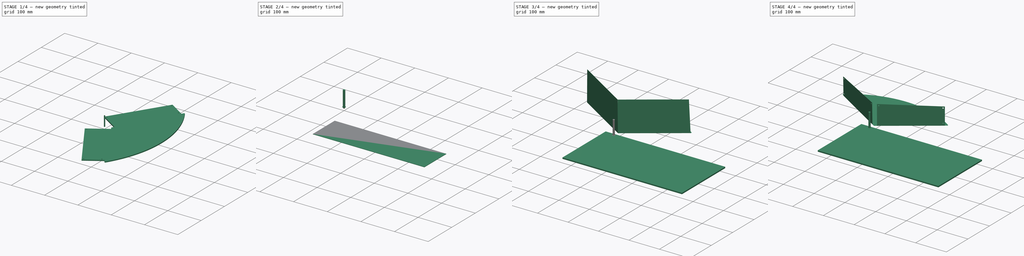
[diagram: build sequence overview — one tinted view per stage of 4, left to right]
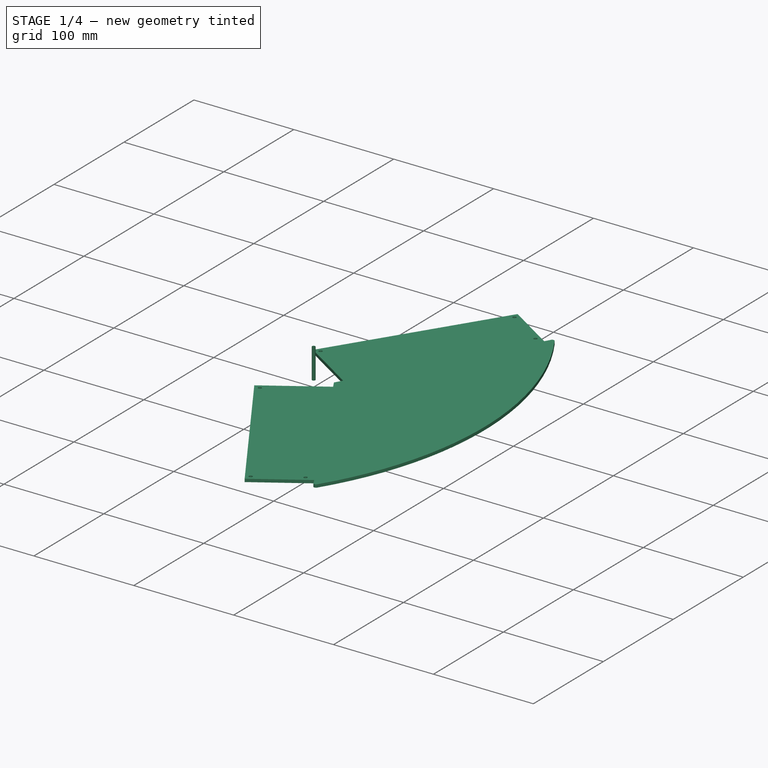
[diagram: stage 1 of 4 — iso view after this stage's code; geometry added in this stage tinted green]
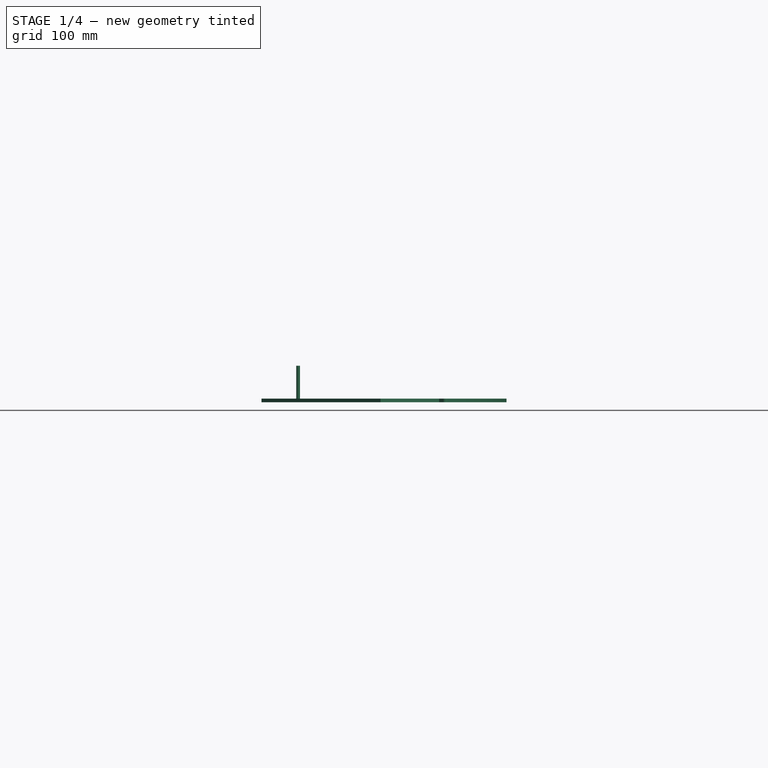
[diagram: stage 1 of 4 — front view after this stage's code; geometry added in this stage tinted green]
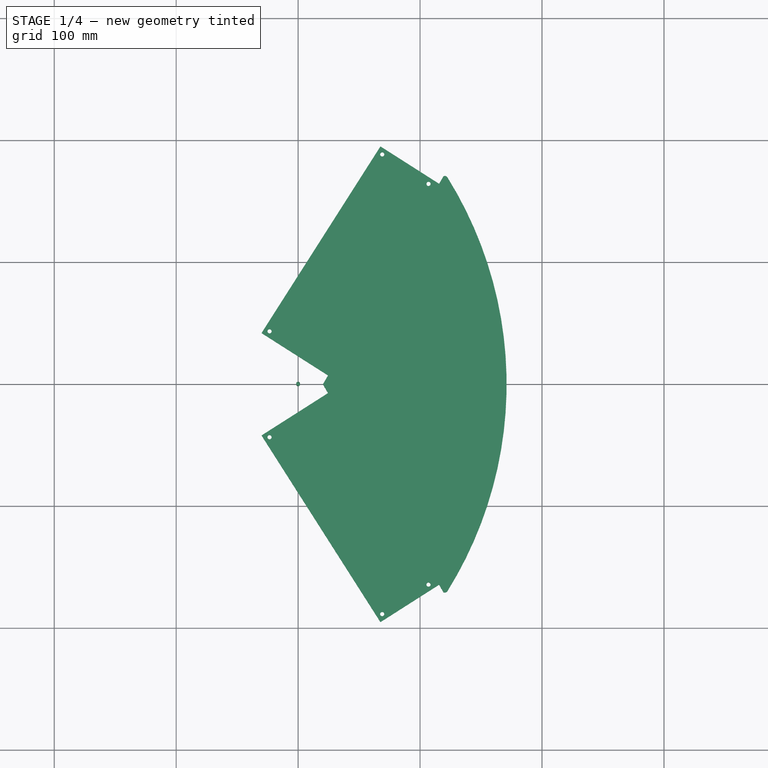
[diagram: stage 1 of 4 — top view after this stage's code; geometry added in this stage tinted green]
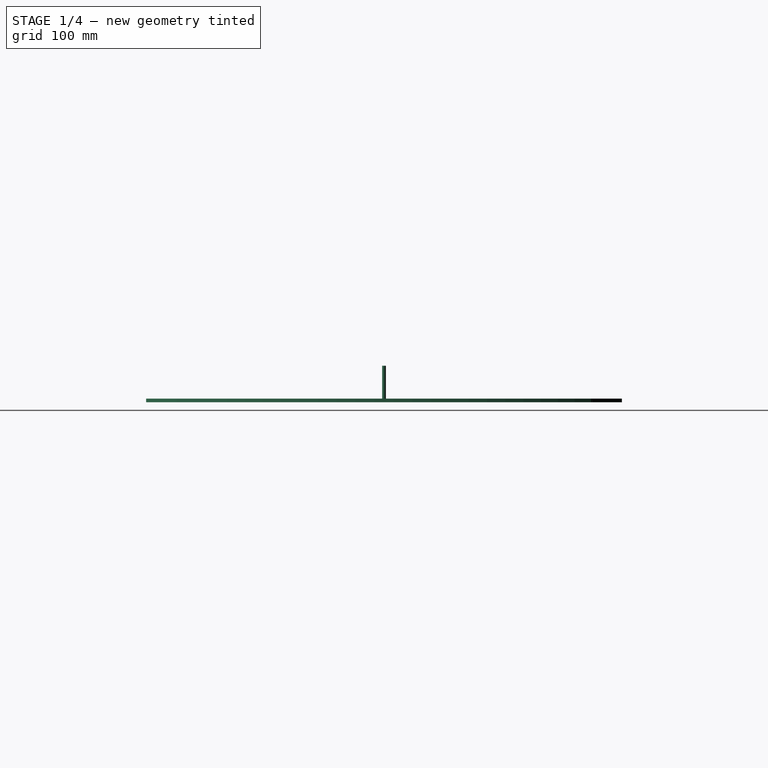
[diagram: stage 1 of 4 — right view after this stage's code; geometry added in this stage tinted green]
FCSTD DOCUMENT  (FreeCAD 0.21R31641 (Git))
Label: test_cover
License: All rights reserved
LicenseURL: http://en.wikipedia.org/wiki/All_rights_reserved
objects: Path::FeaturePython×7, App::DocumentObjectGroup×6, Sketcher::SketchObject×5, Part::FeaturePython×5, PartDesign::Pad×2, PartDesign::Pocket×2, PartDesign::Body×2, App::FeaturePython×2, PartDesign::FeaturePython×1, PartDesign::Line×1, PartDesign::SubShapeBinder×1, PartDesign::Mirrored×1, Part::Feature×1, PartDesign::FeatureBase×1, Part::Part2DObjectPython×1
note: 29 computed .brp shape members not serialized (recipe doc carries the construction recipe); baked Part::Feature solids carry a one-line shape summary decoded from their .brp
EXTERNAL_REF file=composit_stand_small_3_vertDroppers.FCStd obj=Body001

FEATURE [PartDesign::Body] Body  label="Body_material_0.30ansi"
  Group = -> [Sketch,Pad,Bend,Sketch001,Pocket,Pocket001,Mirrored,DatumLine,Binder]
  Origin = -> Origin
  Tip = -> Mirrored
FEATURE [Part::Feature] Unfold
  Placement = pos=(0,0,0) rot=(-0.043578,0.043578,-0.998099;1.5727rad)
  shape: bbox 201 x 390.2 x 0.4088 mm, 29 faces (baked)
FEATURE [Sketcher::SketchObject] Unfold_Sketch
  FullyConstrained = false
  sketch-geometry (72):
    g0: LineSegment StartX=24.1565 StartY=-7.46046 StartZ=0 EndX=-30.0265 EndY=-41.9772 EndZ=0
    g1: LineSegment StartX=-30.03 StartY=-41.9798 StartZ=0 EndX=-30.0265 EndY=-41.9772 EndZ=0
    g2: LineSegment StartX=-30.03 StartY=-41.9798 StartZ=0 EndX=67.4975 EndY=-195.08 EndZ=0
    g3: LineSegment StartX=-30.0265 StartY=-41.9772 StartZ=0 EndX=67.5011 EndY=-195.077 EndZ=0
    g4: LineSegment StartX=67.4975 StartY=-195.08 StartZ=0 EndX=67.5011 EndY=-195.077 EndZ=0
    g5: LineSegment StartX=67.4975 StartY=-195.08 StartZ=0 EndX=115.006 EndY=-164.815 EndZ=0
    g6: LineSegment StartX=67.5011 StartY=-195.077 StartZ=0 EndX=115.005 EndY=-164.815 EndZ=0
    g7: LineSegment StartX=115.005 StartY=-164.815 StartZ=0 EndX=115.006 EndY=-164.815 EndZ=0
    g8: BSplineCurve PolesCount=15 KnotsCount=13 Degree=3 IsPeriodic=0
    g9: BSplineCurve PolesCount=15 KnotsCount=13 Degree=3 IsPeriodic=0
    g10: LineSegment StartX=24.4228 StartY=-7.30156 StartZ=0 EndX=24.4163 EndY=-7.29023 EndZ=0
    g11: BSplineCurve PolesCount=15 KnotsCount=13 Degree=3 IsPeriodic=0
    g12: BSplineCurve PolesCount=15 KnotsCount=13 Degree=3 IsPeriodic=0
    g13: LineSegment StartX=115.272 StartY=-164.656 StartZ=0 EndX=115.622 EndY=-164.455 EndZ=0
    g14: LineSegment StartX=24.5125 StartY=7.25 StartZ=0 EndX=20.3107 EndY=1.42e-14 EndZ=0
    g15: LineSegment StartX=20.2844 StartY=3.8e-15 StartZ=0 EndX=20.3107 EndY=3.8e-15 EndZ=0
    g16: LineSegment StartX=24.4862 StartY=7.25 StartZ=0 EndX=20.2844 EndY=1.42e-14 EndZ=0
    g17: LineSegment StartX=24.5125 StartY=7.25 StartZ=0 EndX=24.4862 EndY=7.25 EndZ=0
    g18: LineSegment StartX=24.4862 StartY=7.25 StartZ=0 EndX=24.4163 EndY=7.29023 EndZ=0
    g19: LineSegment StartX=24.5125 StartY=7.25 StartZ=0 EndX=24.4228 EndY=7.30156 EndZ=0
    g20: LineSegment StartX=24.4228 StartY=7.30156 StartZ=0 EndX=24.4163 EndY=7.29023 EndZ=0
    g21: LineSegment StartX=-30.0265 StartY=41.9772 StartZ=0 EndX=24.1565 EndY=7.46046 EndZ=0
    g22: LineSegment StartX=-30.03 StartY=41.9798 StartZ=0 EndX=-30.0265 EndY=41.9772 EndZ=0
    g23: LineSegment StartX=67.4975 StartY=195.08 StartZ=0 EndX=-30.03 EndY=41.9798 EndZ=0
    g24: LineSegment StartX=67.5011 StartY=195.077 StartZ=0 EndX=-30.0265 EndY=41.9772 EndZ=0
    g25: LineSegment StartX=67.4975 StartY=195.08 StartZ=0 EndX=67.5011 EndY=195.077 EndZ=0
    g26: LineSegment StartX=115.006 StartY=164.815 StartZ=0 EndX=67.4975 EndY=195.08 EndZ=0
    g27: LineSegment StartX=115.005 StartY=164.815 StartZ=0 EndX=67.5011 EndY=195.077 EndZ=0
    g28: LineSegment StartX=115.005 StartY=164.815 StartZ=0 EndX=115.006 EndY=164.815 EndZ=0
    g29: BSplineCurve PolesCount=15 KnotsCount=13 Degree=3 IsPeriodic=0
    g30: BSplineCurve PolesCount=15 KnotsCount=13 Degree=3 IsPeriodic=0
    g31: BSplineCurve PolesCount=15 KnotsCount=13 Degree=3 IsPeriodic=0
    g32: BSplineCurve PolesCount=15 KnotsCount=13 Degree=3 IsPeriodic=0
    g33: LineSegment StartX=115.272 StartY=164.656 StartZ=0 EndX=115.622 EndY=164.455 EndZ=0
    g34: LineSegment StartX=119.151 StartY=170.591 StartZ=0 EndX=115.602 EndY=164.466 EndZ=0
    g35: BSplineCurve PolesCount=15 KnotsCount=15 Degree=1 IsPeriodic=0
    g36: LineSegment StartX=119.189 StartY=170.61 StartZ=0 EndX=115.622 EndY=164.455 EndZ=0
    g37: ArcOfCircle CenterX=120.304 CenterY=168.372 CenterZ=0 NormalX=0 NormalY=0 NormalZ=1 AngleXU=-1.5708 Radius=2.5 StartAngle=2.12788 EndAngle=3.604
    g38: ArcOfCircle CenterX=-150 CenterY=2.84e-14 CenterZ=0 NormalX=0 NormalY=0 NormalZ=1 AngleXU=-1.5708 Radius=320.955 StartAngle=1.01371 EndAngle=2.12788
    g39: ArcOfCircle CenterX=120.304 CenterY=-168.372 CenterZ=0 NormalX=0 NormalY=0 NormalZ=1 AngleXU=-1.5708 Radius=2.5 StartAngle=5.82078 EndAngle=7.29689
    g40: BSplineCurve PolesCount=15 KnotsCount=15 Degree=1 IsPeriodic=0
    g41: LineSegment StartX=119.151 StartY=-170.591 StartZ=0 EndX=115.602 EndY=-164.466 EndZ=0
    g42: LineSegment StartX=119.189 StartY=-170.61 StartZ=0 EndX=115.622 EndY=-164.455 EndZ=0
    g43: LineSegment StartX=24.4862 StartY=-7.25 StartZ=0 EndX=24.4163 EndY=-7.29023 EndZ=0
    g44: LineSegment StartX=24.5125 StartY=-7.25 StartZ=0 EndX=24.4862 EndY=-7.25 EndZ=0
    g45: LineSegment StartX=24.5125 StartY=-7.25 StartZ=0 EndX=24.4228 EndY=-7.30156 EndZ=0
    g46: LineSegment StartX=24.5125 StartY=-7.25 StartZ=0 EndX=20.3107 EndY=0 EndZ=0
    g47: LineSegment StartX=24.4862 StartY=-7.25 StartZ=0 EndX=20.2844 EndY=0 EndZ=0
    g48: ArcOfEllipse CenterX=106.913 CenterY=164.324 CenterZ=0 NormalX=0 NormalY=0 NormalZ=1 MajorRadius=1.70018 MinorRadius=1.7 AngleXU=2.50456 StartAngle=1.57208 EndAngle=4.7111
    g49: ArcOfEllipse CenterX=68.9559 CenterY=188.504 CenterZ=0 NormalX=0 NormalY=0 NormalZ=1 MajorRadius=1.70018 MinorRadius=1.7 AngleXU=2.50456 StartAngle=1.57208 EndAngle=4.7111
    g50: ArcOfEllipse CenterX=68.9559 CenterY=-188.504 CenterZ=0 NormalX=0 NormalY=0 NormalZ=1 MajorRadius=1.70018 MinorRadius=1.7 AngleXU=-2.50456 StartAngle=1.57208 EndAngle=4.7111
    g51: ArcOfEllipse CenterX=106.913 CenterY=-164.324 CenterZ=0 NormalX=0 NormalY=0 NormalZ=1 MajorRadius=1.70018 MinorRadius=1.7 AngleXU=-2.50456 StartAngle=1.57208 EndAngle=4.7111
    g52: ArcOfEllipse CenterX=-23.4543 CenterY=43.4374 CenterZ=0 NormalX=0 NormalY=0 NormalZ=1 MajorRadius=1.70018 MinorRadius=1.7 AngleXU=2.50456 StartAngle=1.57208 EndAngle=4.7111
    g53: ArcOfEllipse CenterX=-23.4543 CenterY=-43.4374 CenterZ=0 NormalX=0 NormalY=0 NormalZ=1 MajorRadius=1.70018 MinorRadius=1.7 AngleXU=-2.50456 StartAngle=1.57208 EndAngle=4.7111
    g54: ArcOfEllipse CenterX=106.917 CenterY=164.321 CenterZ=0 NormalX=0 NormalY=0 NormalZ=1 MajorRadius=1.70018 MinorRadius=1.7 AngleXU=2.50456 StartAngle=4.71239 EndAngle=4.78222
    g55: ArcOfEllipse CenterX=106.917 CenterY=164.321 CenterZ=0 NormalX=0 NormalY=0 NormalZ=1 MajorRadius=1.70018 MinorRadius=1.7 AngleXU=2.50456 StartAngle=1.5708 EndAngle=4.71239
    g56: ArcOfEllipse CenterX=106.917 CenterY=164.321 CenterZ=0 NormalX=0 NormalY=0 NormalZ=1 MajorRadius=1.70018 MinorRadius=1.7 AngleXU=2.50456 StartAngle=4.78222 EndAngle=7.85398
    g57: ArcOfEllipse CenterX=68.9594 CenterY=188.502 CenterZ=0 NormalX=0 NormalY=0 NormalZ=1 MajorRadius=1.70018 MinorRadius=1.7 AngleXU=2.50456 StartAngle=4.71239 EndAngle=4.78222
    g58: ArcOfEllipse CenterX=68.9594 CenterY=188.502 CenterZ=0 NormalX=0 NormalY=0 NormalZ=1 MajorRadius=1.70018 MinorRadius=1.7 AngleXU=2.50456 StartAngle=1.5708 EndAngle=4.71239
    g59: ArcOfEllipse CenterX=68.9594 CenterY=188.502 CenterZ=0 NormalX=0 NormalY=0 NormalZ=1 MajorRadius=1.70018 MinorRadius=1.7 AngleXU=2.50456 StartAngle=4.78222 EndAngle=7.85398
    g60: ArcOfEllipse CenterX=68.9594 CenterY=-188.502 CenterZ=0 NormalX=0 NormalY=0 NormalZ=1 MajorRadius=1.70018 MinorRadius=1.7 AngleXU=-2.50456 StartAngle=1.50097 EndAngle=1.5708
    g61: ArcOfEllipse CenterX=68.9594 CenterY=-188.502 CenterZ=0 NormalX=0 NormalY=0 NormalZ=1 MajorRadius=1.70018 MinorRadius=1.7 AngleXU=-2.50456 StartAngle=1.5708 EndAngle=4.71239
    g62: ArcOfEllipse CenterX=68.9594 CenterY=-188.502 CenterZ=0 NormalX=0 NormalY=0 NormalZ=1 MajorRadius=1.70018 MinorRadius=1.7 AngleXU=-2.50456 StartAngle=4.71239 EndAngle=7.78415
    g63: ArcOfEllipse CenterX=106.917 CenterY=-164.321 CenterZ=0 NormalX=0 NormalY=0 NormalZ=1 MajorRadius=1.70018 MinorRadius=1.7 AngleXU=-2.50456 StartAngle=1.50097 EndAngle=1.5708
    g64: ArcOfEllipse CenterX=106.917 CenterY=-164.321 CenterZ=0 NormalX=0 NormalY=0 NormalZ=1 MajorRadius=1.70018 MinorRadius=1.7 AngleXU=-2.50456 StartAngle=1.5708 EndAngle=4.71239
    g65: ArcOfEllipse CenterX=106.917 CenterY=-164.321 CenterZ=0 NormalX=0 NormalY=0 NormalZ=1 MajorRadius=1.70018 MinorRadius=1.7 AngleXU=-2.50456 StartAngle=4.71239 EndAngle=7.78415
    g66: ArcOfEllipse CenterX=-23.4508 CenterY=43.4348 CenterZ=0 NormalX=0 NormalY=0 NormalZ=1 MajorRadius=1.70018 MinorRadius=1.7 AngleXU=2.50456 StartAngle=4.71239 EndAngle=4.78222
    g67: ArcOfEllipse CenterX=-23.4508 CenterY=43.4348 CenterZ=0 NormalX=0 NormalY=0 NormalZ=1 MajorRadius=1.70018 MinorRadius=1.7 AngleXU=2.50456 StartAngle=1.5708 EndAngle=4.71239
    g68: ArcOfEllipse CenterX=-23.4508 CenterY=43.4348 CenterZ=0 NormalX=0 NormalY=0 NormalZ=1 MajorRadius=1.70018 MinorRadius=1.7 AngleXU=2.50456 StartAngle=4.78222 EndAngle=7.85398
    g69: ArcOfEllipse CenterX=-23.4508 CenterY=-43.4348 CenterZ=0 NormalX=0 NormalY=0 NormalZ=1 MajorRadius=1.70018 MinorRadius=1.7 AngleXU=-2.50456 StartAngle=1.50097 EndAngle=1.5708
    g70: ArcOfEllipse CenterX=-23.4508 CenterY=-43.4348 CenterZ=0 NormalX=0 NormalY=0 NormalZ=1 MajorRadius=1.70018 MinorRadius=1.7 AngleXU=-2.50456 StartAngle=1.5708 EndAngle=4.71239
    g71: ArcOfEllipse CenterX=-23.4508 CenterY=-43.4348 CenterZ=0 NormalX=0 NormalY=0 NormalZ=1 MajorRadius=1.70018 MinorRadius=1.7 AngleXU=-2.50456 StartAngle=4.71239 EndAngle=7.78415
FEATURE [Sketcher::SketchObject] Unfold_Sketch_Outline
  FullyConstrained = false
  sketch-geometry (72):
    g0: BSplineCurve PolesCount=15 KnotsCount=15 Degree=1 IsPeriodic=0
    g1: LineSegment StartX=119.151 StartY=-170.591 StartZ=0 EndX=115.602 EndY=-164.466 EndZ=0
    g2: BSplineCurve PolesCount=15 KnotsCount=13 Degree=3 IsPeriodic=0
    g3: BSplineCurve PolesCount=15 KnotsCount=13 Degree=3 IsPeriodic=0
    g4: LineSegment StartX=115.272 StartY=-164.656 StartZ=0 EndX=115.622 EndY=-164.455 EndZ=0
    g5: LineSegment StartX=119.189 StartY=-170.61 StartZ=0 EndX=115.622 EndY=-164.455 EndZ=0
    g6: ArcOfCircle CenterX=120.304 CenterY=-168.372 CenterZ=0 NormalX=0 NormalY=0 NormalZ=1 AngleXU=-1.5708 Radius=2.5 StartAngle=5.82078 EndAngle=7.29689
    g7: ArcOfCircle CenterX=-150 CenterY=2.84e-14 CenterZ=0 NormalX=0 NormalY=0 NormalZ=1 AngleXU=-1.5708 Radius=320.955 StartAngle=1.01371 EndAngle=2.12788
    g8: ArcOfCircle CenterX=120.304 CenterY=168.372 CenterZ=0 NormalX=0 NormalY=0 NormalZ=1 AngleXU=-1.5708 Radius=2.5 StartAngle=2.12788 EndAngle=3.604
    g9: LineSegment StartX=119.189 StartY=170.61 StartZ=0 EndX=115.622 EndY=164.455 EndZ=0
    g10: LineSegment StartX=115.272 StartY=164.656 StartZ=0 EndX=115.622 EndY=164.455 EndZ=0
    g11: BSplineCurve PolesCount=15 KnotsCount=13 Degree=3 IsPeriodic=0
    g12: LineSegment StartX=115.005 StartY=164.815 StartZ=0 EndX=115.006 EndY=164.815 EndZ=0
    g13: BSplineCurve PolesCount=15 KnotsCount=13 Degree=3 IsPeriodic=0
    g14: LineSegment StartX=115.005 StartY=164.815 StartZ=0 EndX=67.5011 EndY=195.077 EndZ=0
    g15: LineSegment StartX=67.5011 StartY=195.077 StartZ=0 EndX=-30.0265 EndY=41.9772 EndZ=0
    g16: LineSegment StartX=-30.0265 StartY=41.9772 StartZ=0 EndX=24.1565 EndY=7.46046 EndZ=0
    g17: BSplineCurve PolesCount=15 KnotsCount=13 Degree=3 IsPeriodic=0
    g18: LineSegment StartX=24.5125 StartY=7.25 StartZ=0 EndX=24.4228 EndY=7.30156 EndZ=0
    g19: LineSegment StartX=24.5125 StartY=7.25 StartZ=0 EndX=24.4862 EndY=7.25 EndZ=0
    g20: LineSegment StartX=24.4862 StartY=7.25 StartZ=0 EndX=20.2844 EndY=1.42e-14 EndZ=0
    g21: LineSegment StartX=24.4862 StartY=-7.25 StartZ=0 EndX=20.2844 EndY=0 EndZ=0
    g22: BSplineCurve PolesCount=15 KnotsCount=13 Degree=3 IsPeriodic=0
    g23: LineSegment StartX=24.4862 StartY=-7.25 StartZ=0 EndX=24.4163 EndY=-7.29023 EndZ=0
    g24: LineSegment StartX=24.5125 StartY=-7.25 StartZ=0 EndX=24.4862 EndY=-7.25 EndZ=0
    g25: LineSegment StartX=24.5125 StartY=-7.25 StartZ=0 EndX=24.4228 EndY=-7.30156 EndZ=0
    g26: LineSegment StartX=24.4228 StartY=-7.30156 StartZ=0 EndX=24.4163 EndY=-7.29023 EndZ=0
    g27: BSplineCurve PolesCount=15 KnotsCount=13 Degree=3 IsPeriodic=0
    g28: LineSegment StartX=24.1565 StartY=-7.46046 StartZ=0 EndX=-30.0265 EndY=-41.9772 EndZ=0
    g29: LineSegment StartX=-30.03 StartY=-41.9798 StartZ=0 EndX=-30.0265 EndY=-41.9772 EndZ=0
    g30: LineSegment StartX=-30.03 StartY=-41.9798 StartZ=0 EndX=67.4975 EndY=-195.08 EndZ=0
    g31: LineSegment StartX=67.4975 StartY=-195.08 StartZ=0 EndX=67.5011 EndY=-195.077 EndZ=0
    g32: LineSegment StartX=67.5011 StartY=-195.077 StartZ=0 EndX=115.005 EndY=-164.815 EndZ=0
    g33: LineSegment StartX=115.005 StartY=-164.815 StartZ=0 EndX=115.006 EndY=-164.815 EndZ=0
    g34: LineSegment StartX=67.4975 StartY=-195.08 StartZ=0 EndX=115.006 EndY=-164.815 EndZ=0
    g35: LineSegment StartX=-30.0265 StartY=-41.9772 StartZ=0 EndX=67.5011 EndY=-195.077 EndZ=0
    g36: LineSegment StartX=24.5125 StartY=-7.25 StartZ=0 EndX=20.3107 EndY=0 EndZ=0
    g37: LineSegment StartX=24.5125 StartY=7.25 StartZ=0 EndX=20.3107 EndY=1.42e-14 EndZ=0
    g38: LineSegment StartX=24.4862 StartY=7.25 StartZ=0 EndX=24.4163 EndY=7.29023 EndZ=0
    g39: LineSegment StartX=24.4228 StartY=7.30156 StartZ=0 EndX=24.4163 EndY=7.29023 EndZ=0
    g40: BSplineCurve PolesCount=15 KnotsCount=13 Degree=3 IsPeriodic=0
    g41: LineSegment StartX=20.2844 StartY=3.8e-15 StartZ=0 EndX=20.3107 EndY=3.8e-15 EndZ=0
    g42: LineSegment StartX=-30.03 StartY=41.9798 StartZ=0 EndX=-30.0265 EndY=41.9772 EndZ=0
    g43: LineSegment StartX=67.4975 StartY=195.08 StartZ=0 EndX=-30.03 EndY=41.9798 EndZ=0
    g44: LineSegment StartX=67.4975 StartY=195.08 StartZ=0 EndX=67.5011 EndY=195.077 EndZ=0
    g45: LineSegment StartX=115.006 StartY=164.815 StartZ=0 EndX=67.4975 EndY=195.08 EndZ=0
    g46: LineSegment StartX=119.151 StartY=170.591 StartZ=0 EndX=115.602 EndY=164.466 EndZ=0
    g47: BSplineCurve PolesCount=15 KnotsCount=15 Degree=1 IsPeriodic=0
    g48: ArcOfEllipse CenterX=106.913 CenterY=164.324 CenterZ=0 NormalX=0 NormalY=0 NormalZ=1 MajorRadius=1.70018 MinorRadius=1.7 AngleXU=2.50456 StartAngle=1.57208 EndAngle=4.7111
    g49: ArcOfEllipse CenterX=68.9559 CenterY=188.504 CenterZ=0 NormalX=0 NormalY=0 NormalZ=1 MajorRadius=1.70018 MinorRadius=1.7 AngleXU=2.50456 StartAngle=1.57208 EndAngle=4.7111
    g50: ArcOfEllipse CenterX=68.9559 CenterY=-188.504 CenterZ=0 NormalX=0 NormalY=0 NormalZ=1 MajorRadius=1.70018 MinorRadius=1.7 AngleXU=-2.50456 StartAngle=1.57208 EndAngle=4.7111
    g51: ArcOfEllipse CenterX=106.913 CenterY=-164.324 CenterZ=0 NormalX=0 NormalY=0 NormalZ=1 MajorRadius=1.70018 MinorRadius=1.7 AngleXU=-2.50456 StartAngle=1.57208 EndAngle=4.7111
    g52: ArcOfEllipse CenterX=-23.4543 CenterY=43.4374 CenterZ=0 NormalX=0 NormalY=0 NormalZ=1 MajorRadius=1.70018 MinorRadius=1.7 AngleXU=2.50456 StartAngle=1.57208 EndAngle=4.7111
    g53: ArcOfEllipse CenterX=-23.4543 CenterY=-43.4374 CenterZ=0 NormalX=0 NormalY=0 NormalZ=1 MajorRadius=1.70018 MinorRadius=1.7 AngleXU=-2.50456 StartAngle=1.57208 EndAngle=4.7111
    g54: ArcOfEllipse CenterX=106.917 CenterY=164.321 CenterZ=0 NormalX=0 NormalY=0 NormalZ=1 MajorRadius=1.70018 MinorRadius=1.7 AngleXU=2.50456 StartAngle=4.71239 EndAngle=4.78222
    g55: ArcOfEllipse CenterX=106.917 CenterY=164.321 CenterZ=0 NormalX=0 NormalY=0 NormalZ=1 MajorRadius=1.70018 MinorRadius=1.7 AngleXU=2.50456 StartAngle=4.78222 EndAngle=7.85398
    g56: ArcOfEllipse CenterX=106.917 CenterY=164.321 CenterZ=0 NormalX=0 NormalY=0 NormalZ=1 MajorRadius=1.70018 MinorRadius=1.7 AngleXU=2.50456 StartAngle=1.5708 EndAngle=4.71239
    g57: ArcOfEllipse CenterX=68.9594 CenterY=188.502 CenterZ=0 NormalX=0 NormalY=0 NormalZ=1 MajorRadius=1.70018 MinorRadius=1.7 AngleXU=2.50456 StartAngle=4.71239 EndAngle=4.78222
    g58: ArcOfEllipse CenterX=68.9594 CenterY=188.502 CenterZ=0 NormalX=0 NormalY=0 NormalZ=1 MajorRadius=1.70018 MinorRadius=1.7 AngleXU=2.50456 StartAngle=4.78222 EndAngle=7.85398
    g59: ArcOfEllipse CenterX=68.9594 CenterY=188.502 CenterZ=0 NormalX=0 NormalY=0 NormalZ=1 MajorRadius=1.70018 MinorRadius=1.7 AngleXU=2.50456 StartAngle=1.5708 EndAngle=4.71239
    g60: ArcOfEllipse CenterX=68.9594 CenterY=-188.502 CenterZ=0 NormalX=0 NormalY=0 NormalZ=1 MajorRadius=1.70018 MinorRadius=1.7 AngleXU=-2.50456 StartAngle=1.50097 EndAngle=1.5708
    g61: ArcOfEllipse CenterX=68.9594 CenterY=-188.502 CenterZ=0 NormalX=0 NormalY=0 NormalZ=1 MajorRadius=1.70018 MinorRadius=1.7 AngleXU=-2.50456 StartAngle=1.5708 EndAngle=4.71239
    g62: ArcOfEllipse CenterX=68.9594 CenterY=-188.502 CenterZ=0 NormalX=0 NormalY=0 NormalZ=1 MajorRadius=1.70018 MinorRadius=1.7 AngleXU=-2.50456 StartAngle=4.71239 EndAngle=7.78415
    g63: ArcOfEllipse CenterX=106.917 CenterY=-164.321 CenterZ=0 NormalX=0 NormalY=0 NormalZ=1 MajorRadius=1.70018 MinorRadius=1.7 AngleXU=-2.50456 StartAngle=1.50097 EndAngle=1.5708
    g64: ArcOfEllipse CenterX=106.917 CenterY=-164.321 CenterZ=0 NormalX=0 NormalY=0 NormalZ=1 MajorRadius=1.70018 MinorRadius=1.7 AngleXU=-2.50456 StartAngle=1.5708 EndAngle=4.71239
    g65: ArcOfEllipse CenterX=106.917 CenterY=-164.321 CenterZ=0 NormalX=0 NormalY=0 NormalZ=1 MajorRadius=1.70018 MinorRadius=1.7 AngleXU=-2.50456 StartAngle=4.71239 EndAngle=7.78415
    g66: ArcOfEllipse CenterX=-23.4508 CenterY=43.4348 CenterZ=0 NormalX=0 NormalY=0 NormalZ=1 MajorRadius=1.70018 MinorRadius=1.7 AngleXU=2.50456 StartAngle=4.71239 EndAngle=4.78222
    g67: ArcOfEllipse CenterX=-23.4508 CenterY=43.4348 CenterZ=0 NormalX=0 NormalY=0 NormalZ=1 MajorRadius=1.70018 MinorRadius=1.7 AngleXU=2.50456 StartAngle=4.78222 EndAngle=7.85398
    g68: ArcOfEllipse CenterX=-23.4508 CenterY=43.4348 CenterZ=0 NormalX=0 NormalY=0 NormalZ=1 MajorRadius=1.70018 MinorRadius=1.7 AngleXU=2.50456 StartAngle=1.5708 EndAngle=4.71239
    g69: ArcOfEllipse CenterX=-23.4508 CenterY=-43.4348 CenterZ=0 NormalX=0 NormalY=0 NormalZ=1 MajorRadius=1.70018 MinorRadius=1.7 AngleXU=-2.50456 StartAngle=1.50097 EndAngle=1.5708
    g70: ArcOfEllipse CenterX=-23.4508 CenterY=-43.4348 CenterZ=0 NormalX=0 NormalY=0 NormalZ=1 MajorRadius=1.70018 MinorRadius=1.7 AngleXU=-2.50456 StartAngle=1.5708 EndAngle=4.71239
    g71: ArcOfEllipse CenterX=-23.4508 CenterY=-43.4348 CenterZ=0 NormalX=0 NormalY=0 NormalZ=1 MajorRadius=1.70018 MinorRadius=1.7 AngleXU=-2.50456 StartAngle=4.71239 EndAngle=7.78415
FEATURE [Sketcher::SketchObject] Unfold_Sketch_bends
  FullyConstrained = false
  sketch-geometry (2):
    g0: LineSegment StartX=24.2892 StartY=7.38016 StartZ=0 EndX=115.138 EndY=164.735 EndZ=0
    g1: LineSegment StartX=24.2892 StartY=-7.38016 StartZ=0 EndX=115.138 EndY=-164.735 EndZ=0
FEATURE [PartDesign::FeatureBase] BaseFeature
  BaseFeature = -> Unfold
  Placement = pos=(0,0,0) rot=(-0.043578,0.043578,-0.998099;1.5727rad)
  expr: Placement = <<Unfold>>.Placement
FEATURE [PartDesign::Pad] Pad001
  BaseFeature = -> BaseFeature
  Direction = (-1e-16,0,1)
  Length = 2.7
  Length2 = 10
  Placement = pos=(0,0,0) rot=(-0.043578,0.043578,-0.998099;1.5727rad)
  Profile = -> BaseFeature [Face29]
  Type = 0
FEATURE [App::DocumentObjectGroup] Model
  Group = -> [Clone]
FEATURE [Part::FeaturePython] ToolBit  label="3.175mm Endmill"  # Path/CAM toolbit (typed FeaturePython)
  BitPropertyNames = Chipload | CuttingEdgeHeight | Diameter | Flutes | Length | Material | ShankDiameter | SpindleDirection
  BitShape = <path>
  Chipload = 0
  CuttingEdgeHeight = 30
  Diameter = 3.17
  Flutes = 0
  Length = 10
  Material = 0
  ShankDiameter = 3
  ShapeName = endmill
  SpindleDirection = 0
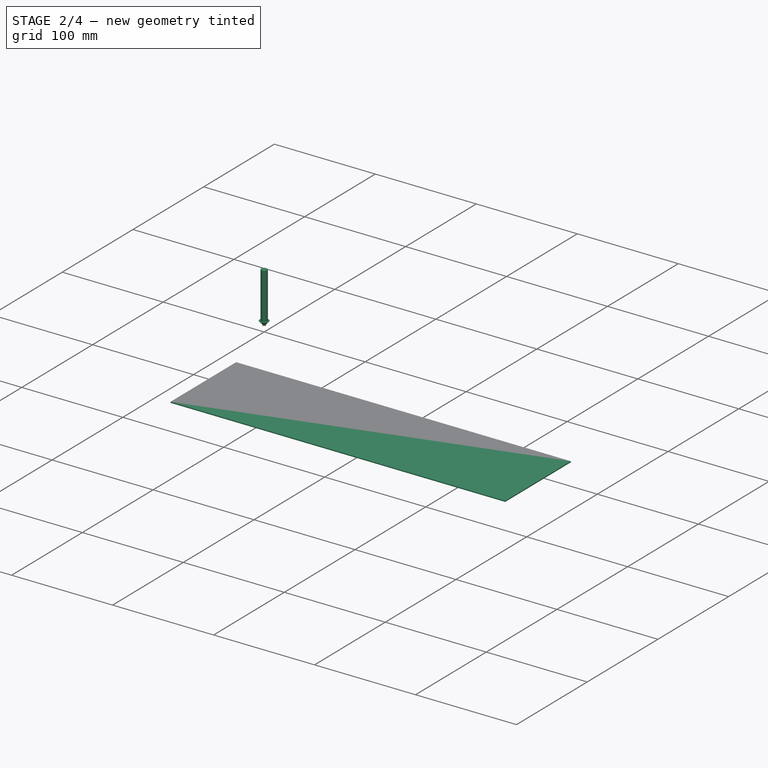
[diagram: stage 2 of 4 — iso view after this stage's code; geometry added in this stage tinted green]
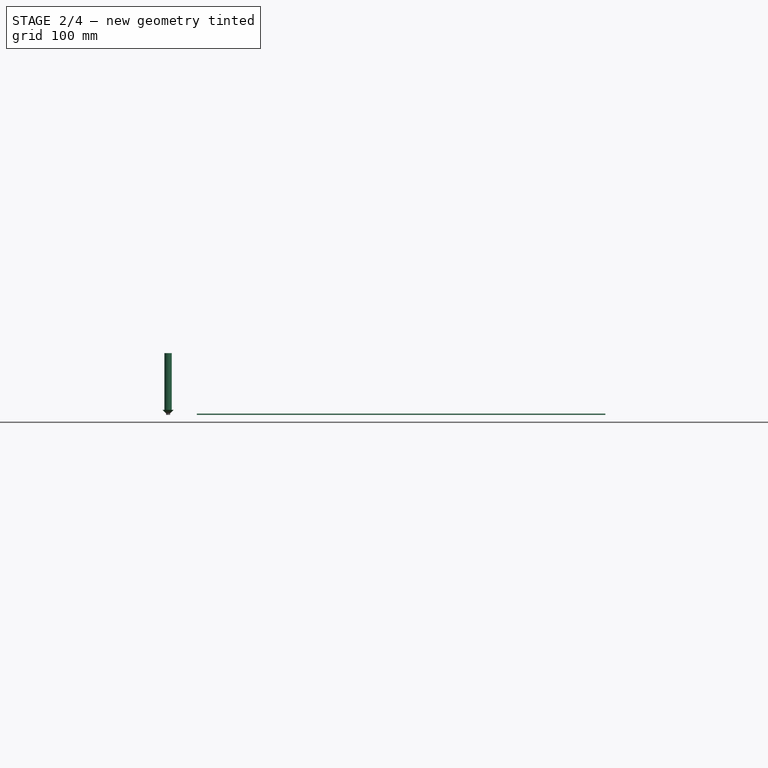
[diagram: stage 2 of 4 — front view after this stage's code; geometry added in this stage tinted green]
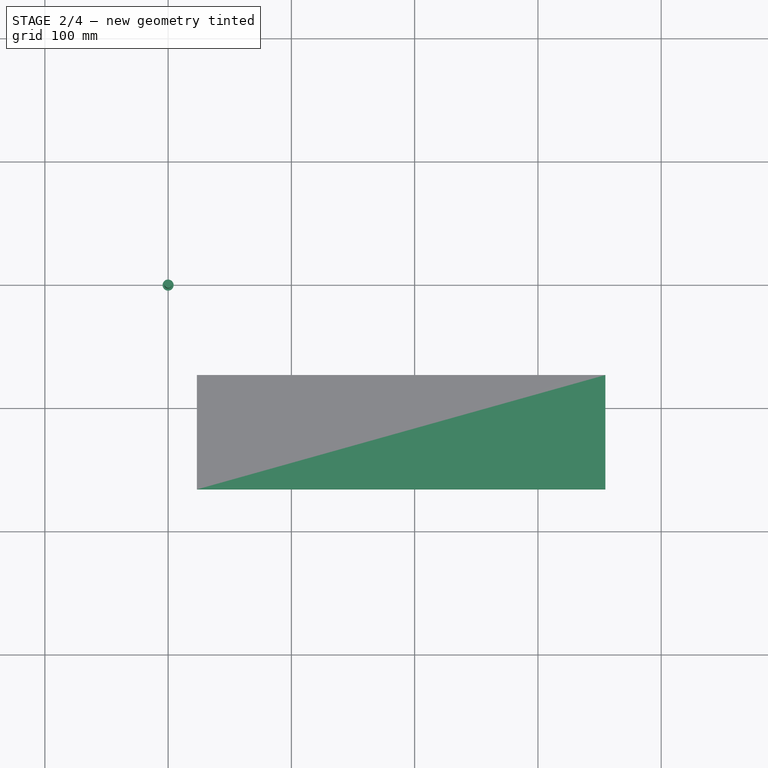
[diagram: stage 2 of 4 — top view after this stage's code; geometry added in this stage tinted green]
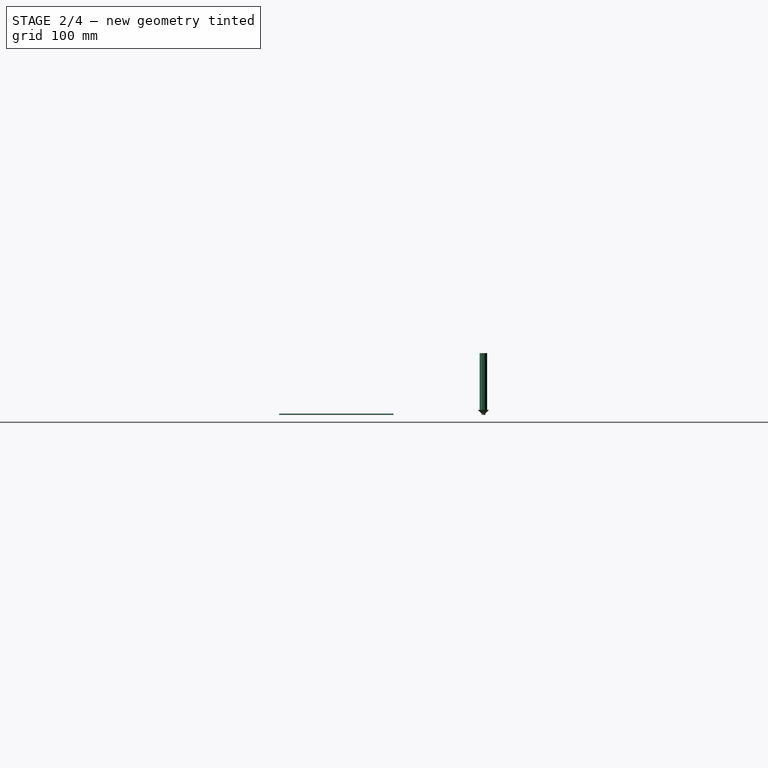
[diagram: stage 2 of 4 — right view after this stage's code; geometry added in this stage tinted green]
FEATURE [PartDesign::Body] Body001
  BaseFeature = -> Unfold
  Group = -> [BaseFeature,Pad001]
  Origin = -> Origin001
  Tip = -> Pad001
FEATURE [App::FeaturePython] SetupSheet  # Path/CAM operation (typed FeaturePython)
  ClearanceHeightExpression = OpStockZMax+SetupSheet.ClearanceHeightOffset
  ClearanceHeightOffset = 5
  CoolantMode = 0
  CoolantModes = None | Flood | Mist
  FinalDepthExpression = -0.1 mm
  HorizRapid = 0
  ProfileDirection = 1
  ProfileSide = 0
  ProfileUseComp = true
  ProfileprocessCircles = true
  ProfileprocessHoles = true
  ProfileprocessPerimeter = true
  SafeHeightExpression = OpStockZMax+SetupSheet.SafeHeightOffset
  SafeHeightOffset = 3
  StartDepthExpression = 3 mm
  StepDownExpression = 4 mm
  VertRapid = 0
FEATURE [Part::FeaturePython] Clone  label="Model-Body001"  # Draft clone (typed FeaturePython)
  AttacherType = Attacher::AttachEngine3D
  Fuse = false
  Objects = -> [Body001]
  PathResource = Model
  Placement = pos=(195.077,30.0265,0) rot=(0,0,1;1.5708rad)
  Scale = (1,1,1)
FEATURE [App::FeaturePython] SetupSheet001  # Path/CAM operation (typed FeaturePython)
  ClearanceHeightExpression = OpStockZMax+SetupSheet001.ClearanceHeightOffset
  ClearanceHeightOffset = 5
  CoolantMode = 0
  CoolantModes = None | Flood | Mist
  DeburrExtraDepth = 0
  DeburrWidth = 2.7
  FinalDepthExpression = 0.6 mm
  HorizRapid = 0
  ProfileDirection = 1
  ProfileprocessCircles = true
  ProfileprocessHoles = true
  ProfileprocessPerimeter = true
  SafeHeightExpression = OpStockZMax+SetupSheet001.SafeHeightOffset
  SafeHeightOffset = 3
  StartDepthExpression = 3 mm
  StepDownExpression = OpToolDiameter
  VertRapid = 0
FEATURE [Part::Part2DObjectPython] Clone2D  label="Model-Unfold_Sketch_bends"  # Draft 2D object (typed FeaturePython)
  Fuse = false
  Objects = -> [Unfold_Sketch_bends]
  PathResource = Model
  Placement = pos=(195.077,30.0265,0) rot=(0,0,1;1.5708rad)
  Scale = (1,1,1)
  expr: Placement = <<Model-Body001>>.Placement
FEATURE [App::DocumentObjectGroup] Model001
  Group = -> [Clone2D]
FEATURE [Part::FeaturePython] ToolBit001  label="NZV6109015"  # Path/CAM toolbit (typed FeaturePython)
  BitPropertyNames = Chipload | CuttingEdgeAngle | CuttingEdgeHeight | Diameter | Flutes | Length | Material | ShankDiameter | TipDiameter
  BitShape = <path>
  Chipload = 0
  CuttingEdgeAngle = 90
  CuttingEdgeHeight = 4
  Diameter = 10
  Flutes = 0
  Length = 50
  Material = 0
  ShankDiameter = 6
  ShapeName = chamfer
  TipDiameter = 1
FEATURE [Path::FeaturePython] NZV6109015  label="NZV6109016"  # Path/CAM operation (typed FeaturePython)
  HorizFeed = 51.6667
  HorizRapid = 0
  SpindleDir = 0
  SpindleSpeed = 18000
  Tool = -> ToolBit001
  ToolNumber = 2
  VertFeed = 16.6667
  VertRapid = 0
  expr: HorizRapid = SetupSheet001.HorizRapid
  expr: VertRapid = SetupSheet001.VertRapid
FEATURE [App::DocumentObjectGroup] Tools001
  Group = -> [NZV6109015]
FEATURE [Part::FeaturePython] Stock001  # WARN: FeaturePython — macro-defined, semantics opaque (R4)
  Base = -> Model001
  ExtXneg = 1
  ExtXpos = 1
  ExtYneg = 1
  ExtYpos = 1
  ExtZneg = 0
  ExtZpos = 1
  Placement = pos=(24.2892,-164.735,0) rot=(0,0,1;0rad)
  StockType = FromBase
FEATURE [Path::FeaturePython] Engrave  # Path/CAM operation (typed FeaturePython)
  Active = true
  BaseShapes = -> [Clone2D]
  ClearanceHeight = 6
  CoolantMode = 0
  CycleTime = 00:00:16
  FinalDepth = 0.6
  OpFinalDepth = -10
  OpStartDepth = 0
  OpStockZMax = 1
  OpStockZMin = 0
  OpToolDiameter = 10
  SafeHeight = 4
  StartDepth = 3
  StartVertex = 0
  StepDown = 10
  ToolController = -> NZV6109015
  expr: ClearanceHeight = OpStockZMax + SetupSheet001.ClearanceHeightOffset
  expr: FinalDepth = 0.6mm
  expr: SafeHeight = OpStockZMax + SetupSheet001.SafeHeightOffset
  expr: StartDepth = 3mm
  expr: StepDown = OpToolDiameter
FEATURE [App::DocumentObjectGroup] Operations001
  Group = -> [Engrave]
FEATURE [Path::FeaturePython] Job001  label="bend"  # Path/CAM operation (typed FeaturePython)
  CycleTime = 00:00:16
  Fixtures = G54
  GeometryTolerance = 0.01
  JobType = 0
  LastPostProcessDate = 2023-02-16 16:06:00.839628
  LastPostProcessOutput = <userpath>/2411-26D9/test_cover.bend.tap
  Model = -> Model001
  Operations = -> Operations001
  OrderOutputBy = 0
  PostProcessor = 1
  PostProcessorOutputFile = %d.%j.tap
  SetupSheet = -> SetupSheet001
  SplitOutput = false
  Stock = -> Stock001
  Tools = -> Tools001
FEATURE [Path::FeaturePython] Profile  # Path/CAM operation (typed FeaturePython)
  Active = true
  AreaParams:
    Tolerance = 1e-07
    FitArcs = True
    Simplify = False
    CleanDistance = 0.0
    Accuracy = 0.01
    Unit = 1.0
    MinArcPoints = 4
    MaxArcPoints = 100
    ClipperScale = 10000000.0
    Fill = 0
    Coplanar = 0
    Reorient = True
    Outline = False
    Explode = False
    OpenMode = 0
    Deflection = 0.01
    SubjectFill = 0
    ClipFill = 0
    Offset = -1.585
    ExtraPass = 0
    Stepover = 0.0
    LastStepover = 0.0
    JoinType = 0
    EndType = 0
    MiterLimit = 2.0
    RoundPrecision = 0.0
    PocketMode = 0
    ToolRadius = 1.0
    PocketExtraOffset = 0.0
    PocketStepover = 0.0
    PocketLastStepover = 0.0
    FromCenter = False
    Angle = 45.0
    AngleShift = 0.0
    Shift = 0.0
    Thicken = False
    SectionCount = -1
    Stepdown = 1.0
    SectionOffset = 0.0
    SectionTolerance = 1e-07
    SectionMode = 2
    Project = False
  Base = -> [Clone]
  ClearanceHeight = 9
  CoolantMode = 0
  CycleTime = 00:00:33
  Direction = 1
  FinalDepth = -0.1
  HandleMultipleFeatures = 0
  JoinType = 0
  MiterLimit = 0.1
  OffsetExtra = 0
  OpFinalDepth = -6.06e-14
  OpStartDepth = 4
  OpStockZMax = 4
  OpStockZMin = -6.06e-14
  OpToolDiameter = 3.17
  PathParams = {'orientation': 1, 'feedrate': 33.333333333333336, 'feedrate_v': 8.333333333333334, 'verbose': True, 'resume_height': 7.000000000000032, 'retraction': 9.000000000000032, 'return_end': True, 'preamble': False, 'start': Vector (383.49168136717145, 98.92521610695967, 9.000000000000032)}
  SafeHeight = 7
  Side = 0
  SplitArcs = false
  StartDepth = 3
  StartPoint = (0,0,0)
  StepDown = 4
  ToolController = -> __175mm_Endmill
  UseComp = true
  UseStartPoint = false
  processCircles = true
  processHoles = true
  processPerimeter = false
  expr: ClearanceHeight = OpStockZMax + SetupSheet.ClearanceHeightOffset
  expr: FinalDepth = -0.1mm
  expr: SafeHeight = OpStockZMax + SetupSheet.SafeHeightOffset
  expr: StartDepth = 3mm
  expr: StepDown = 4mm
FEATURE [Path::FeaturePython] Profile001  # Path/CAM operation (typed FeaturePython)
  Active = true
  AreaParams:
    Tolerance = 1e-07
    FitArcs = True
    Simplify = False
    CleanDistance = 0.0
    Accuracy = 0.01
    Unit = 1.0
    MinArcPoints = 4
    MaxArcPoints = 100
    ClipperScale = 10000000.0
    Fill = 0
    Coplanar = 0
    Reorient = True
    Outline = False
    Explode = False
    OpenMode = 0
    Deflection = 0.01
    SubjectFill = 0
    ClipFill = 0
    Offset = 1.585
    ExtraPass = 0
    Stepover = 0.0
    LastStepover = 0.0
    JoinType = 0
    EndType = 0
    MiterLimit = 2.0
    RoundPrecision = 0.0
    PocketMode = 0
    ToolRadius = 1.0
    PocketExtraOffset = 0.0
    PocketStepover = 0.0
    PocketLastStepover = 0.0
    FromCenter = False
    Angle = 45.0
    AngleShift = 0.0
    Shift = 0.0
    Thicken = False
    SectionCount = -1
    Stepdown = 1.0
    SectionOffset = 0.0
    SectionTolerance = 1e-07
    SectionMode = 2
    Project = False
  ClearanceHeight = 9
  CoolantMode = 0
  CycleTime = 00:00:43
  Direction = 1
  FinalDepth = -0.1
  HandleMultipleFeatures = 0
  JoinType = 0
  MiterLimit = 0.1
  OffsetExtra = 0
  OpFinalDepth = -6.06e-14
  OpStartDepth = 4
  OpStockZMax = 4
  OpStockZMin = -6.06e-14
  OpToolDiameter = 3.17
  PathParams:
    orientation = 0
    feedrate = 33.333333333333336
    feedrate_v = 8.333333333333334
    verbose = True
    resume_height = 7.000000000000032
    retraction = 9.000000000000032
    return_end = True
    preamble = False
  SafeHeight = 7
  Side = 0
  SplitArcs = false
  StartDepth = 3
  StartPoint = (0,0,0)
  StepDown = 4
  ToolController = -> __175mm_Endmill
  UseComp = true
  UseStartPoint = false
  processCircles = true
  processHoles = true
  processPerimeter = true
  expr: ClearanceHeight = OpStockZMax + SetupSheet.ClearanceHeightOffset
  expr: FinalDepth = -0.1mm
  expr: SafeHeight = OpStockZMax + SetupSheet.SafeHeightOffset
  expr: StartDepth = 3mm
  expr: StepDown = 4mm
FEATURE [App::DocumentObjectGroup] Operations
  Group = -> [Profile,Profile001]
FEATURE [Path::FeaturePython] Job  label="profile"  # Path/CAM operation (typed FeaturePython)
  CycleTime = 00:01:16
  Fixtures = G54
  GeometryTolerance = 0.01
  JobType = 0
  LastPostProcessDate = 2023-02-16 16:05:54.887829
  LastPostProcessOutput = <userpath>/2411-26D9/test_cover.profile.tap
  Model = -> Model
  Operations = -> Operations
  OrderOutputBy = 0
  PostProcessor = 1
  PostProcessorOutputFile = %d.%j.tap
  SetupSheet = -> SetupSheet
  SplitOutput = false
  Stock = -> Stock
  Tools = -> Tools
note: 2 file-system paths scrubbed to <path> (originals preserved in the JSON sidecar)
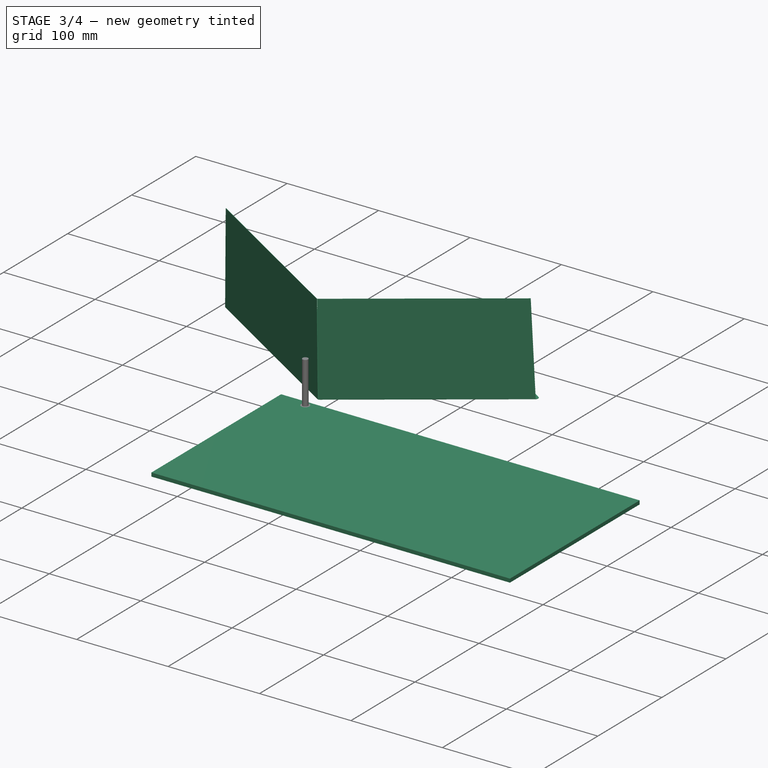
[diagram: stage 3 of 4 — iso view after this stage's code; geometry added in this stage tinted green]
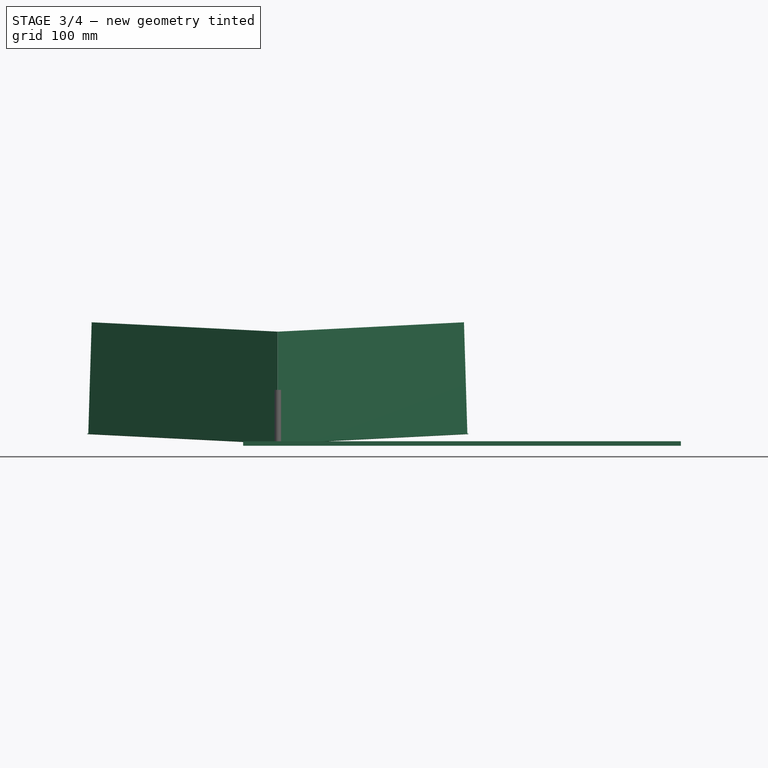
[diagram: stage 3 of 4 — front view after this stage's code; geometry added in this stage tinted green]
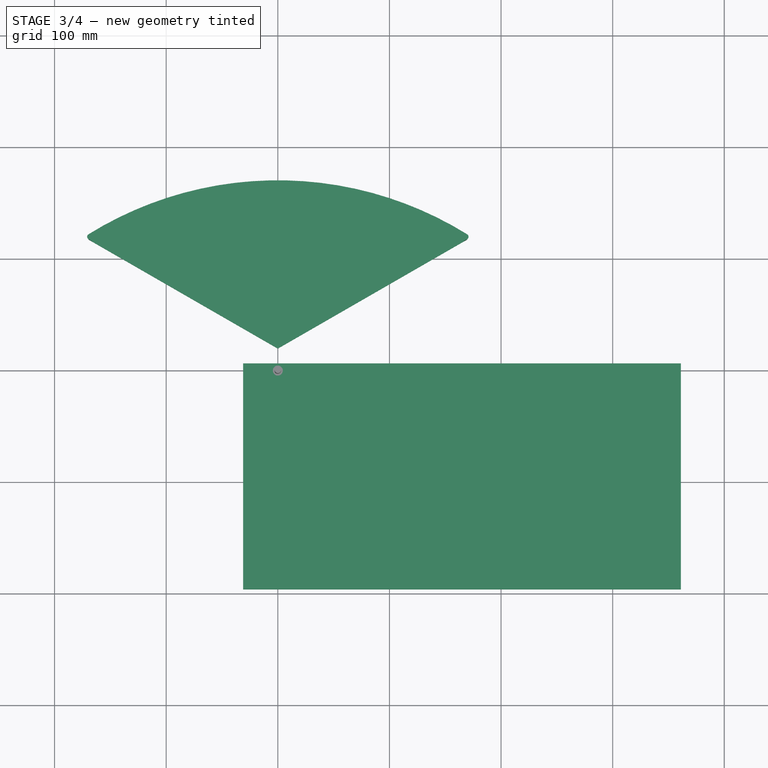
[diagram: stage 3 of 4 — top view after this stage's code; geometry added in this stage tinted green]
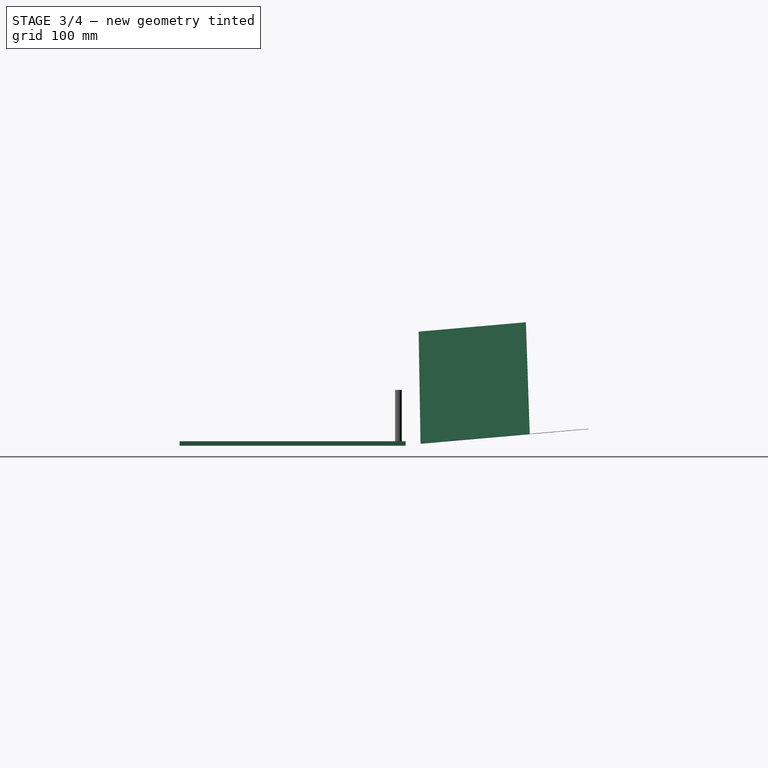
[diagram: stage 3 of 4 — right view after this stage's code; geometry added in this stage tinted green]
FEATURE [Sketcher::SketchObject] Sketch
  AttachmentOffset = pos=(0,0,0) rot=(1,0,0;0.087266rad)
  FullyConstrained = true
  MapMode = 5
  Placement = pos=(0,0,0) rot=(1,0,0;0.087266rad)
  Support = -> [XY_Plane]
  sketch-geometry (8):
    g0: LineSegment StartX=0 StartY=20.2073 StartZ=0 EndX=169.622 EndY=118.139 EndZ=0
    g1: LineSegment StartX=0 StartY=20.2073 StartZ=0 EndX=-169.622 EndY=118.139 EndZ=0
    g2: ArcOfCircle CenterX=-1.75e-14 CenterY=-150 CenterZ=0 NormalX=0 NormalY=0 NormalZ=1 AngleXU=0 Radius=320.955 StartAngle=1.01371 EndAngle=2.12788
    g3: LineSegment StartX=0 StartY=0 StartZ=0 EndX=-8.75 EndY=15.1554 EndZ=0
    g4: ArcOfCircle CenterX=168.372 CenterY=120.304 CenterZ=0 NormalX=0 NormalY=0 NormalZ=1 AngleXU=0 Radius=2.5 StartAngle=5.23599 EndAngle=7.29689
    g5: ArcOfCircle CenterX=-168.372 CenterY=120.304 CenterZ=0 NormalX=0 NormalY=0 NormalZ=1 AngleXU=0 Radius=2.5 StartAngle=2.12788 EndAngle=4.18879
    g6: GeomPoint X=173.205 Y=120.207 Z=0
    g7: GeomPoint X=-173.205 Y=120.207 Z=0
  constraints (20):
    c: Coincident(g1,g0)
    c: Angle(g-1,g0) = 0.523599
    c: DistanceY(g2) = -150
    c: PointOnObject(g0,g-2)
    c: Coincident(g3,g-1)
    c: Perpendicular(g0,g3)
    c: PointOnObject(g3,g0)
    c: Distance(g3) = 17.5
    c: Tangent(g2,g4) = -1.5708
    c: Tangent(g0,g4) = -1.5708
    c: Tangent(g2,g5) = -1.5708
    c: Tangent(g1,g5) = 1.5708
    c: Equal(g5,g4)
    c: PointOnObject(g6,g2)
    c: PointOnObject(g6,g0)
    c: Distance(g6,g0) = 200
    c: PointOnObject(g7,g1)
    c: PointOnObject(g7,g2)
    c: Symmetric(g7,g6,g-2)
    c: Diameter(g4) = 5
FEATURE [PartDesign::Pad] Pad
  Direction = (0,-0.0871557,0.996195)
  Length = 0.3
  Length2 = 10
  Profile = -> Sketch
  ReferenceAxis = -> Sketch [N_Axis]
  Type = 0
FEATURE [PartDesign::FeaturePython] Bend  # WARN: FeaturePython — macro-defined, semantics opaque (R4)
  AutoMiter = true
  BaseFeature = -> Pad
  BendType = 0
  LengthList = [100]
  LengthSpec = 0
  ReliefFactor = 0.7
  UseReliefFactor = false
  angle = 93.5
  baseObject = -> Pad [Edge14,Edge3]
  bendAList = [93.5]
  extend1 = 1
  extend2 = 0
  gap1 = 0
  gap2 = 0
  invert = false
  kfactor = 0.5
  length = 100
  maxExtendDist = 5
  minGap = 0.1
  minReliefGap = 1
  miterangle1 = 0
  miterangle2 = 0
  offset = 0
  radius = 0.1
  reliefType = 0
  reliefd = 1
  reliefw = 0.8
  sketchflip = false
  sketchinvert = false
  unfold = false
FEATURE [Path::FeaturePython] __175mm_Endmill  label="3.175mm Endmill001"  # Path/CAM operation (typed FeaturePython)
  HorizFeed = 33.3333
  HorizRapid = 0
  SpindleDir = 0
  SpindleSpeed = 18000
  Tool = -> ToolBit
  ToolNumber = 1
  VertFeed = 8.33333
  VertRapid = 0
  expr: HorizRapid = SetupSheet.HorizRapid
  expr: VertRapid = SetupSheet.VertRapid
FEATURE [App::DocumentObjectGroup] Tools
  Group = -> [__175mm_Endmill]
FEATURE [Part::FeaturePython] Stock  # WARN: FeaturePython — macro-defined, semantics opaque (R4)
  Base = -> Model
  ExtXneg = 1
  ExtXpos = 1
  ExtYneg = 1
  ExtYpos = 1
  ExtZneg = 0
  ExtZpos = 1
  Placement = pos=(-30.03,-195.08,-6.06e-14) rot=(0,0,1;0rad)
  StockType = FromBase
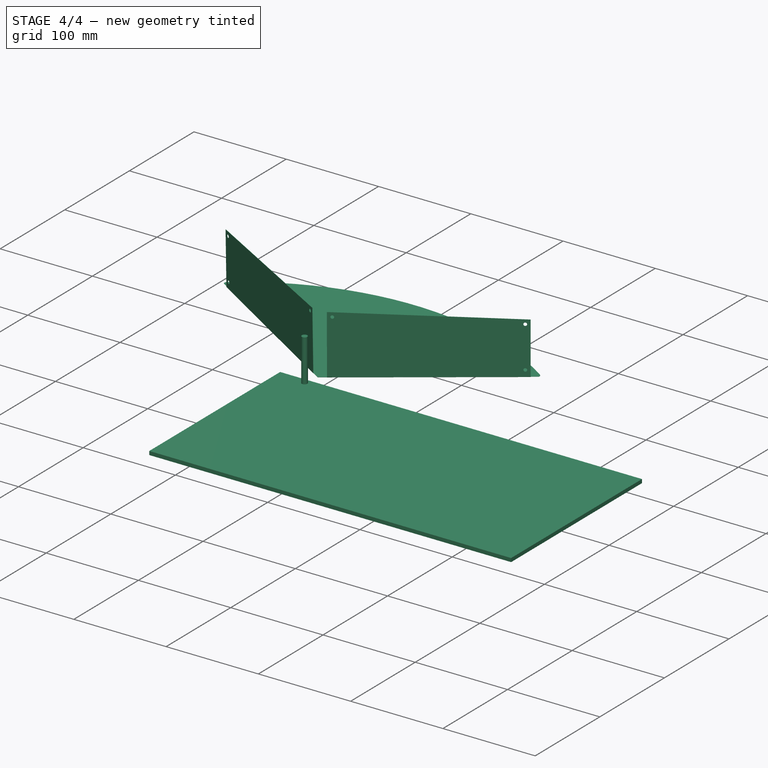
[diagram: stage 4 of 4 — iso view after this stage's code; geometry added in this stage tinted green]
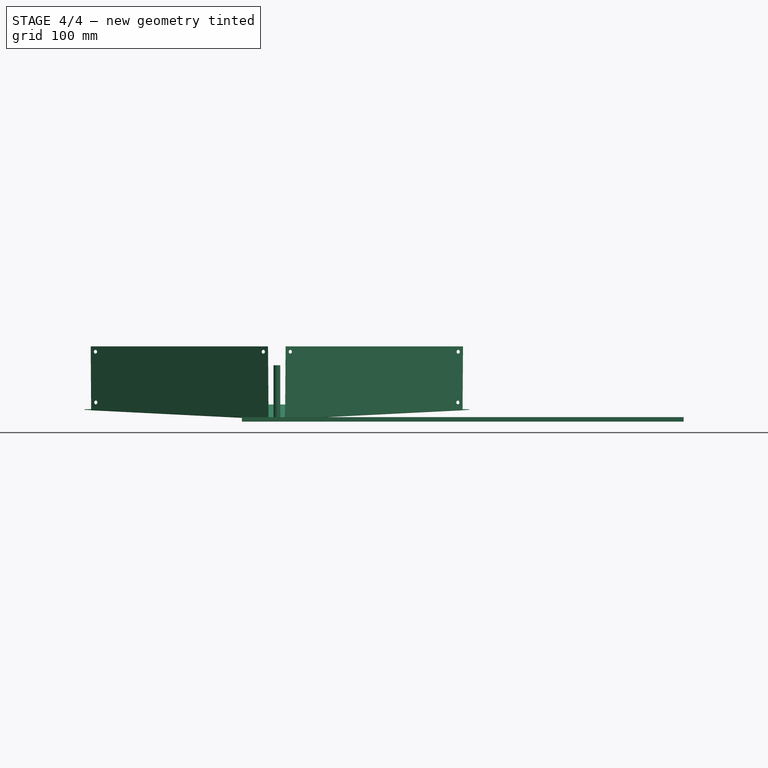
[diagram: stage 4 of 4 — front view after this stage's code; geometry added in this stage tinted green]
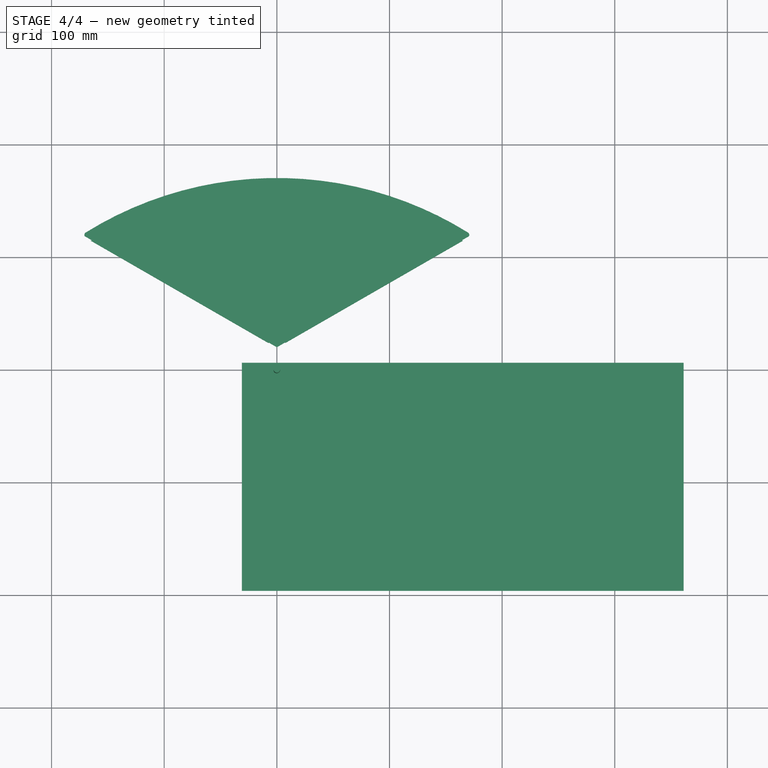
[diagram: stage 4 of 4 — top view after this stage's code; geometry added in this stage tinted green]
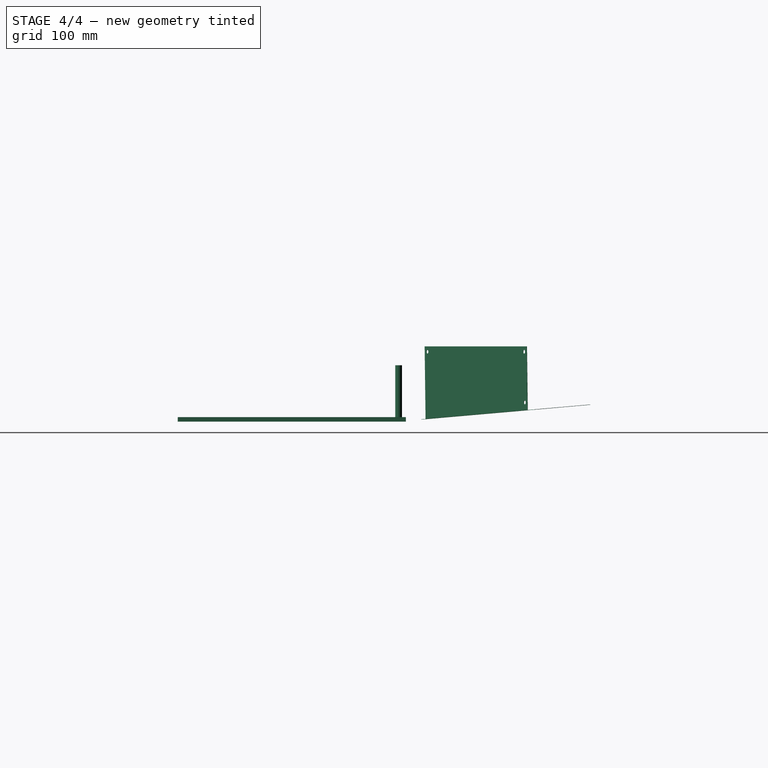
[diagram: stage 4 of 4 — right view after this stage's code; geometry added in this stage tinted green]
FEATURE [PartDesign::Line] DatumLine
  AttacherType = Attacher::AttachEngineLine
  AttachmentOffset = pos=(65,0,0) rot=(0,1,0;2.0944rad)
  Length = 20
  MapMode = 29
  Placement = pos=(0,65,0) rot=(-0.186157,0.694747,0.694747;3.50969rad)
  ResizeMode = 0
  Support = -> [X_Axis]
FEATURE [PartDesign::SubShapeBinder] Binder
  BindCopyOnChange = 0
  BindMode = 0
  ClaimChildren = false
  Context = -> Body [Binder.]
  Fuse = false
  MakeFace = true
  OffsetFill = false
  OffsetIntersection = false
  OffsetJoinType = 0
  OffsetOpenResult = false
  PartialLoad = false
  Placement = pos=(0,0,-167) rot=(0,0,-1;1.0472rad)
  Relative = true
  Support = -> [<external composit_stand_small_3_vertDroppers.FCStd>#Body001[Binder027.]]
  _Version = 2
FEATURE [Sketcher::SketchObject] Sketch001
  AttachmentOffset = pos=(0,0,0) rot=(0,1,0;-1.0472rad)
  ExternalGeometry = -> [Sketch,Binder]
  FullyConstrained = false
  MapMode = 5
  Placement = pos=(0,0,0) rot=(-0.935113,-0.250563,-0.250563;4.64535rad)
  Support = -> [YZ_Plane]
  sketch-geometry (12):
    g0: LineSegment StartX=18.4752 StartY=1.12707 StartZ=0 EndX=200 EndY=9.04506 EndZ=0
    g1: LineSegment StartX=200 StartY=9.04506 StartZ=0 EndX=200 EndY=66.7624 EndZ=0
    g2: LineSegment StartX=200 StartY=66.7624 StartZ=0 EndX=18.4752 EndY=66.7624 EndZ=0
    g3: LineSegment StartX=18.4752 StartY=66.7624 StartZ=0 EndX=18.4752 EndY=1.12707 EndZ=0
    g4: LineSegment StartX=-31.7209 StartY=177.542 StartZ=0 EndX=-31.7209 EndY=-1.06246 EndZ=0
    g5: LineSegment StartX=-31.7209 StartY=-1.06246 StartZ=0 EndX=18.4752 EndY=1.12707 EndZ=0
    g6: LineSegment StartX=200 StartY=9.04506 StartZ=0 EndX=381.071 EndY=16.9433 EndZ=0
    g7: LineSegment StartX=381.071 StartY=16.9433 StartZ=0 EndX=381.071 EndY=177.542 EndZ=0
    g8: LineSegment StartX=-31.7209 StartY=177.542 StartZ=0 EndX=381.071 EndY=177.542 EndZ=0
    g9: LineSegment StartX=195.238 StartY=62 StartZ=0 EndX=195.238 EndY=66.7624 EndZ=0
    g10: LineSegment StartX=195.238 StartY=62 StartZ=0 EndX=200 EndY=62 EndZ=0
    g11: LineSegment StartX=23.2376 StartY=62 StartZ=0 EndX=18.4752 EndY=62 EndZ=0
  constraints (33):
    c: Coincident(g0,g1)
    c: Coincident(g1,g2)
    c: Coincident(g2,g3)
    c: Coincident(g3,g0)
    c: Horizontal(g2)
    c: Vertical(g1)
    c: Vertical(g3)
    c: Angle(g-1,g0) = 0.0435917
    c: Vertical(g4)
    c: Coincident(g4,g5)
    c: Coincident(g5,g3)
    c: Coincident(g1,g6)
    c: Coincident(g6,g7)
    c: Vertical(g7)
    c: Coincident(g8,g4)
    c: Coincident(g8,g7)
    c: Horizontal(g8)
    c: Tangent(g0,g6)
    c: Tangent(g0,g5)
    c: Distance(g3,g-3) = 1
    c: Parallel(g0,g-3)
    c: DistanceX(g1) = 200
    c: Coincident(g9,g-4)
    c: PointOnObject(g9,g2)
    c: Vertical(g9)
    c: Coincident(g10,g9)
    c: PointOnObject(g10,g1)
    c: Horizontal(g10)
    c: Equal(g10,g9)
    c: Coincident(g11,g-5)
    c: PointOnObject(g11,g3)
    c: Horizontal(g11)
    c: Equal(g11,g10)
FEATURE [PartDesign::Pocket] Pocket
  BaseFeature = -> Bend
  Direction = (-0.5,0.866025,-3e-16)
  Length = 17.5
  Length2 = 5
  Profile = -> Sketch001
  ReferenceAxis = -> Sketch001 [N_Axis]
  Type = 0
FEATURE [PartDesign::Pocket] Pocket001
  BaseFeature = -> Pocket
  Direction = (-0.5,0.866025,-2e-16)
  Length = 5
  Length2 = 5
  Midplane = true
  Profile = -> Binder
  Type = 1
FEATURE [PartDesign::Mirrored] Mirrored
  BaseFeature = -> Pocket001
  MirrorPlane = -> YZ_Plane
  Originals = -> [Pocket,Pocket001]
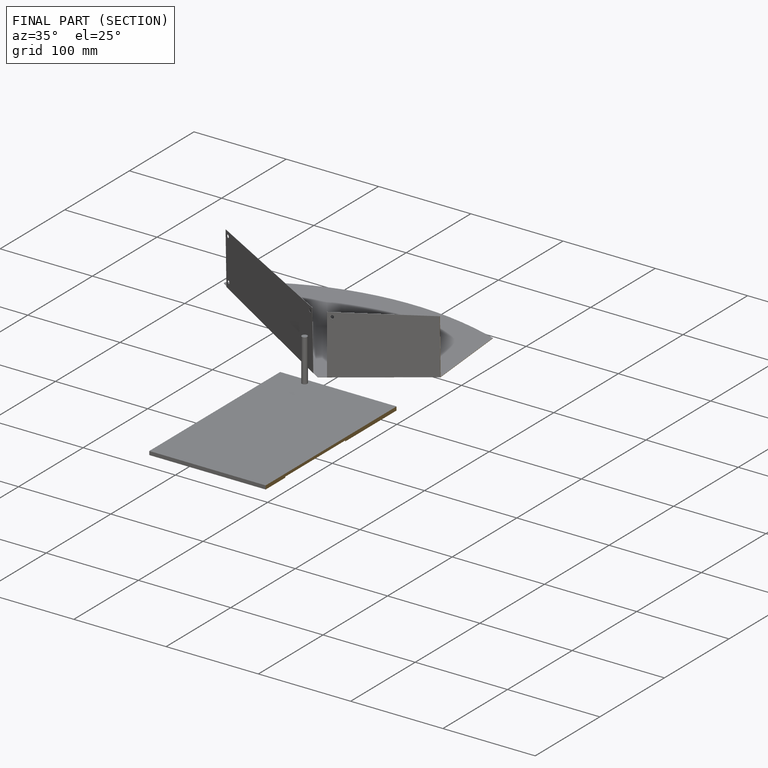
[diagram: finished part — half-section view (interior)]
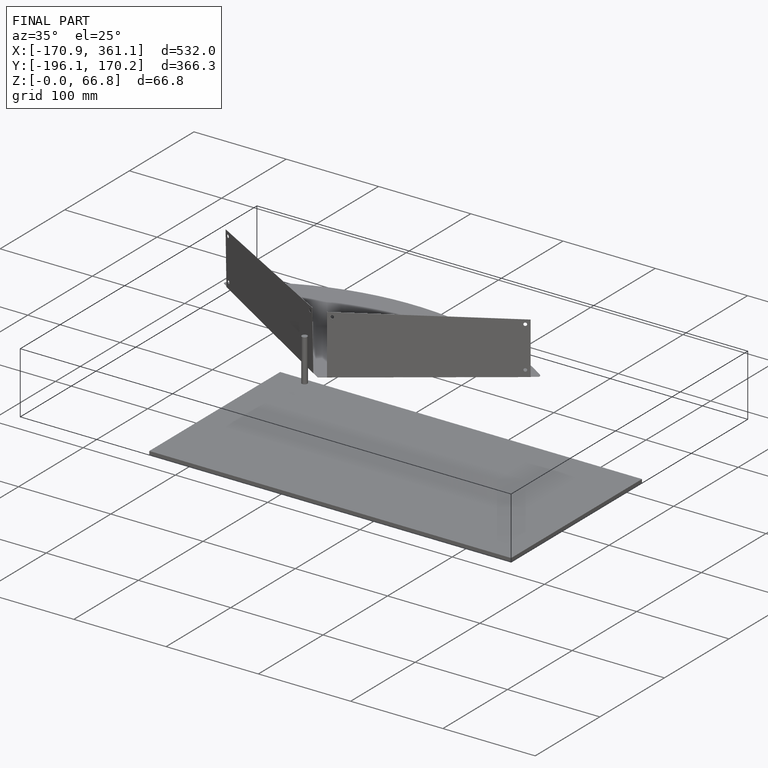
[diagram: finished part — iso view with bounding-box wireframe]
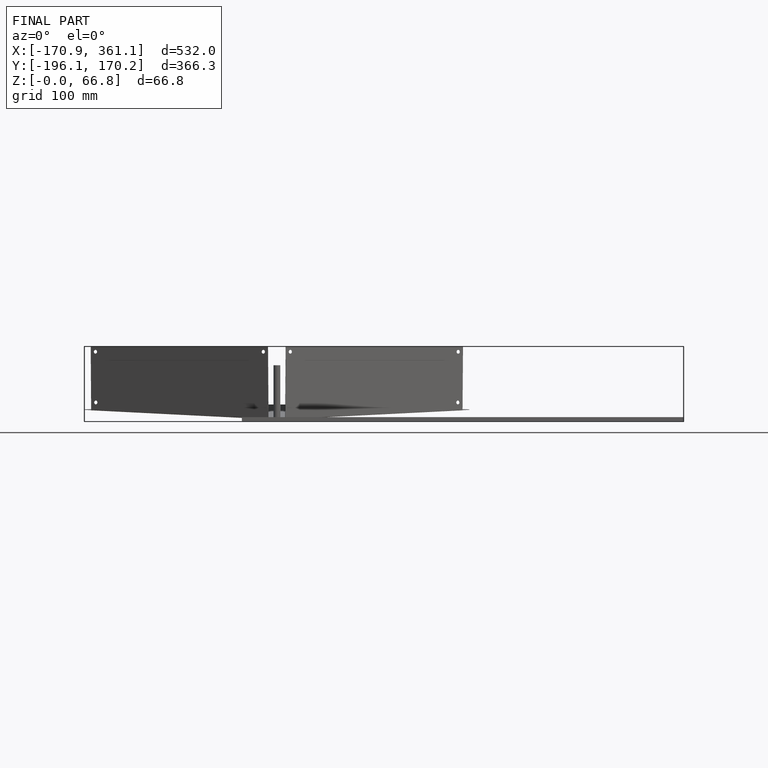
[diagram: finished part — front view with bounding-box wireframe]
